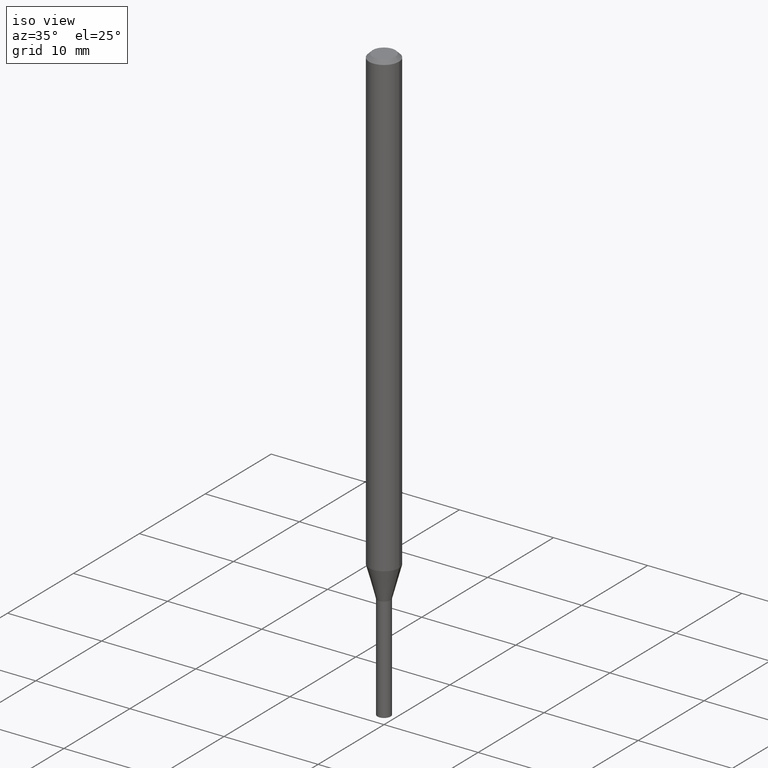
[diagram: clean part render]
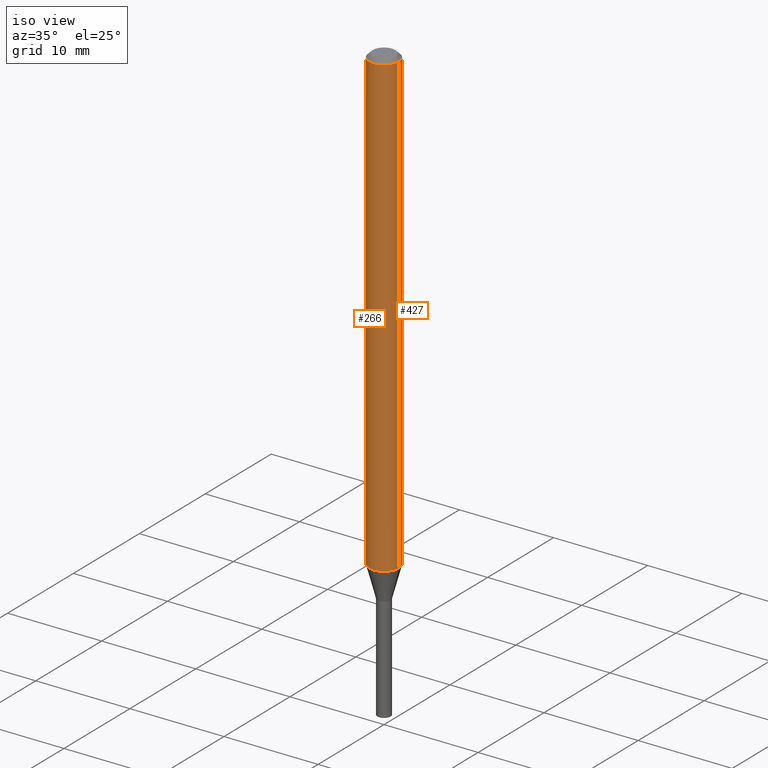
[diagram: same view with one multi-face feature highlighted, each face labeled with its STEP entity id]
A machine part, iso view. The highlighted faces form ONE feature: a constant-radius fillet chain: 2 tangent blend faces with common blend radius 1.5875 mm. The faces share edges in the B-rep.
Their STEP definitions:
[1] entity #427 (Cylinder):
#26 = CIRCLE ( 'NONE', #258, 0.06250000000000000000 ) ;
#27 = CARTESIAN_POINT ( 'NONE',  ( 3.668203209277705088E-31, -5.237222008264718399E-17, -0.01499999999999999944 ) ) ;
#29 = LINE ( 'NONE', #418, #206 ) ;
#55 = CARTESIAN_POINT ( 'NONE',  ( 0.06250000000000000000, -7.172823224113832982E-15, -1.929378221735090548 ) ) ;
#57 = DIRECTION ( 'NONE',  ( 1.000000000000000000, -6.982962677686266711E-15, 0.000000000000000000 ) ) ;
#69 = ORIENTED_EDGE ( 'NONE', *, *, #178, .T. ) ;
#80 = CARTESIAN_POINT ( 'NONE',  ( 0.000000000000000000, 0.000000000000000000, 0.000000000000000000 ) ) ;
#87 = DIRECTION ( 'NONE',  ( -2.445468806185136597E-29, 3.491481338843145583E-15, 1.000000000000000000 ) ) ;
#93 = DIRECTION ( 'NONE',  ( -2.445468806185136877E-29, 3.491481338843145188E-15, 1.000000000000000000 ) ) ;
#107 = EDGE_LOOP ( 'NONE', ( #356, #69, #263, #295 ) ) ;
#111 = VERTEX_POINT ( 'NONE', #416 ) ;
#112 = EDGE_CURVE ( 'NONE', #364, #288, #29, .T. ) ;
#126 = CARTESIAN_POINT ( 'NONE',  ( -0.06250000000000000000, -6.292298846908378697E-15, -1.929378221735090548 ) ) ;
#137 = DIRECTION ( 'NONE',  ( -2.445468806185136877E-29, 3.491481338843145188E-15, 1.000000000000000000 ) ) ;
#143 = DIRECTION ( 'NONE',  ( 1.000000000000000000, -6.982962677686262766E-15, 0.000000000000000000 ) ) ;
#151 = EDGE_CURVE ( 'NONE', #288, #111, #264, .T. ) ;
#171 = CARTESIAN_POINT ( 'NONE',  ( -0.06250000000000000000, 4.440892098500626162E-16, -3.074334431409316114E-30 ) ) ;
#175 = AXIS2_PLACEMENT_3D ( 'NONE', #27, #246, #57 ) ;
#178 = EDGE_CURVE ( 'NONE', #215, #111, #457, .T. ) ;
#182 = EDGE_CURVE ( 'NONE', #364, #215, #26, .T. ) ;
#206 = VECTOR ( 'NONE', #93, 39.37007874015748143 ) ;
#215 = VERTEX_POINT ( 'NONE', #126 ) ;
#230 = DIRECTION ( 'NONE',  ( 1.000000000000000000, -6.982962677686266711E-15, 4.876176775795935793E-29 ) ) ;
#242 = CARTESIAN_POINT ( 'NONE',  ( 0.06250000000000000000, -4.888073874380388472E-16, -0.01499999999999999944 ) ) ;
#246 = DIRECTION ( 'NONE',  ( -2.445468806185136597E-29, 3.491481338843145583E-15, 1.000000000000000000 ) ) ;
#248 = DIRECTION ( 'NONE',  ( -2.445468806185136597E-29, 3.491481338843145583E-15, 1.000000000000000000 ) ) ;
#258 = AXIS2_PLACEMENT_3D ( 'NONE', #281, #248, #143 ) ;
#263 = ORIENTED_EDGE ( 'NONE', *, *, #151, .F. ) ;
#264 = CIRCLE ( 'NONE', #175, 0.06250000000000000000 ) ;
#265 = VECTOR ( 'NONE', #137, 39.37007874015748143 ) ;
#281 = CARTESIAN_POINT ( 'NONE',  ( 4.718234256586113509E-29, -6.736388056758440524E-15, -1.929378221735090548 ) ) ;
#288 = VERTEX_POINT ( 'NONE', #242 ) ;
#295 = ORIENTED_EDGE ( 'NONE', *, *, #112, .F. ) ;
#304 = AXIS2_PLACEMENT_3D ( 'NONE', #80, #87, #230 ) ;
#348 = CYLINDRICAL_SURFACE ( 'NONE', #304, 0.06250000000000000000 ) ;
#356 = ORIENTED_EDGE ( 'NONE', *, *, #182, .T. ) ;
#364 = VERTEX_POINT ( 'NONE', #55 ) ;
#411 = FACE_OUTER_BOUND ( 'NONE', #107, .T. ) ;
#416 = CARTESIAN_POINT ( 'NONE',  ( -0.06250000000000000000, -2.950290928570481777E-15, -0.01499999999999999944 ) ) ;
#418 = CARTESIAN_POINT ( 'NONE',  ( 0.06250000000000000000, -4.364351673553916694E-16, 3.047610484872459871E-30 ) ) ;
#427 = ADVANCED_FACE ( 'NONE', ( #411 ), #348, .T. ) ;
#457 = LINE ( 'NONE', #171, #265 ) ;
[2] entity #266 (Cylinder):
#1 = CIRCLE ( 'NONE', #59, 0.06250000000000000000 ) ;
#29 = LINE ( 'NONE', #418, #206 ) ;
#55 = CARTESIAN_POINT ( 'NONE',  ( 0.06250000000000000000, -7.172823224113832982E-15, -1.929378221735090548 ) ) ;
#59 = AXIS2_PLACEMENT_3D ( 'NONE', #173, #351, #131 ) ;
#88 = CYLINDRICAL_SURFACE ( 'NONE', #369, 0.06250000000000000000 ) ;
#93 = DIRECTION ( 'NONE',  ( -2.445468806185136877E-29, 3.491481338843145188E-15, 1.000000000000000000 ) ) ;
#111 = VERTEX_POINT ( 'NONE', #416 ) ;
#112 = EDGE_CURVE ( 'NONE', #364, #288, #29, .T. ) ;
#117 = ORIENTED_EDGE ( 'NONE', *, *, #376, .F. ) ;
#126 = CARTESIAN_POINT ( 'NONE',  ( -0.06250000000000000000, -6.292298846908378697E-15, -1.929378221735090548 ) ) ;
#127 = EDGE_CURVE ( 'NONE', #215, #364, #1, .T. ) ;
#131 = DIRECTION ( 'NONE',  ( 1.000000000000000000, -6.982962677686262766E-15, 0.000000000000000000 ) ) ;
#137 = DIRECTION ( 'NONE',  ( -2.445468806185136877E-29, 3.491481338843145188E-15, 1.000000000000000000 ) ) ;
#171 = CARTESIAN_POINT ( 'NONE',  ( -0.06250000000000000000, 4.440892098500626162E-16, -3.074334431409316114E-30 ) ) ;
#173 = CARTESIAN_POINT ( 'NONE',  ( 4.718234256586113509E-29, -6.736388056758440524E-15, -1.929378221735090548 ) ) ;
#178 = EDGE_CURVE ( 'NONE', #215, #111, #457, .T. ) ;
#199 = DIRECTION ( 'NONE',  ( 1.000000000000000000, -6.982962677686266711E-15, 0.000000000000000000 ) ) ;
#201 = CARTESIAN_POINT ( 'NONE',  ( 0.000000000000000000, 0.000000000000000000, 0.000000000000000000 ) ) ;
#206 = VECTOR ( 'NONE', #93, 39.37007874015748143 ) ;
#215 = VERTEX_POINT ( 'NONE', #126 ) ;
#242 = CARTESIAN_POINT ( 'NONE',  ( 0.06250000000000000000, -4.888073874380388472E-16, -0.01499999999999999944 ) ) ;
#265 = VECTOR ( 'NONE', #137, 39.37007874015748143 ) ;
#266 = ADVANCED_FACE ( 'NONE', ( #414 ), #88, .T. ) ;
#271 = DIRECTION ( 'NONE',  ( -2.445468806185136597E-29, 3.491481338843145583E-15, 1.000000000000000000 ) ) ;
#288 = VERTEX_POINT ( 'NONE', #242 ) ;
#292 = AXIS2_PLACEMENT_3D ( 'NONE', #300, #453, #199 ) ;
#300 = CARTESIAN_POINT ( 'NONE',  ( 3.668203209277705088E-31, -5.237222008264718399E-17, -0.01499999999999999944 ) ) ;
#331 = ORIENTED_EDGE ( 'NONE', *, *, #112, .T. ) ;
#351 = DIRECTION ( 'NONE',  ( -2.445468806185136597E-29, 3.491481338843145583E-15, 1.000000000000000000 ) ) ;
#359 = EDGE_LOOP ( 'NONE', ( #409, #401, #331, #117 ) ) ;
#364 = VERTEX_POINT ( 'NONE', #55 ) ;
#369 = AXIS2_PLACEMENT_3D ( 'NONE', #201, #271, #451 ) ;
#376 = EDGE_CURVE ( 'NONE', #111, #288, #389, .T. ) ;
#389 = CIRCLE ( 'NONE', #292, 0.06250000000000000000 ) ;
#401 = ORIENTED_EDGE ( 'NONE', *, *, #127, .T. ) ;
#409 = ORIENTED_EDGE ( 'NONE', *, *, #178, .F. ) ;
#414 = FACE_OUTER_BOUND ( 'NONE', #359, .T. ) ;
#416 = CARTESIAN_POINT ( 'NONE',  ( -0.06250000000000000000, -2.950290928570481777E-15, -0.01499999999999999944 ) ) ;
#418 = CARTESIAN_POINT ( 'NONE',  ( 0.06250000000000000000, -4.364351673553916694E-16, 3.047610484872459871E-30 ) ) ;
#451 = DIRECTION ( 'NONE',  ( 1.000000000000000000, -6.982962677686266711E-15, 4.876176775795935793E-29 ) ) ;
#453 = DIRECTION ( 'NONE',  ( -2.445468806185136597E-29, 3.491481338843145583E-15, 1.000000000000000000 ) ) ;
#457 = LINE ( 'NONE', #171, #265 ) ;